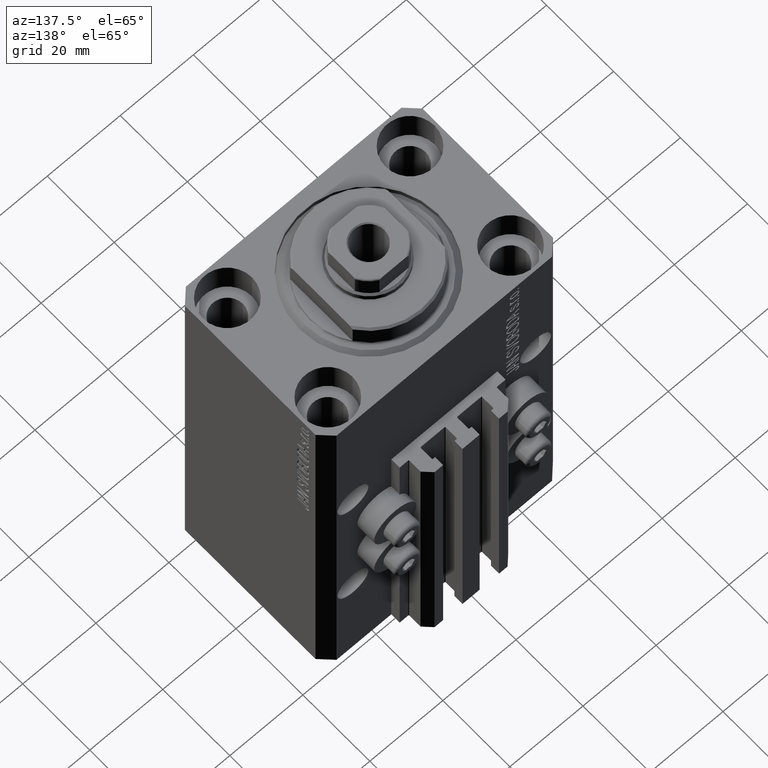
[diagram: clean part render]
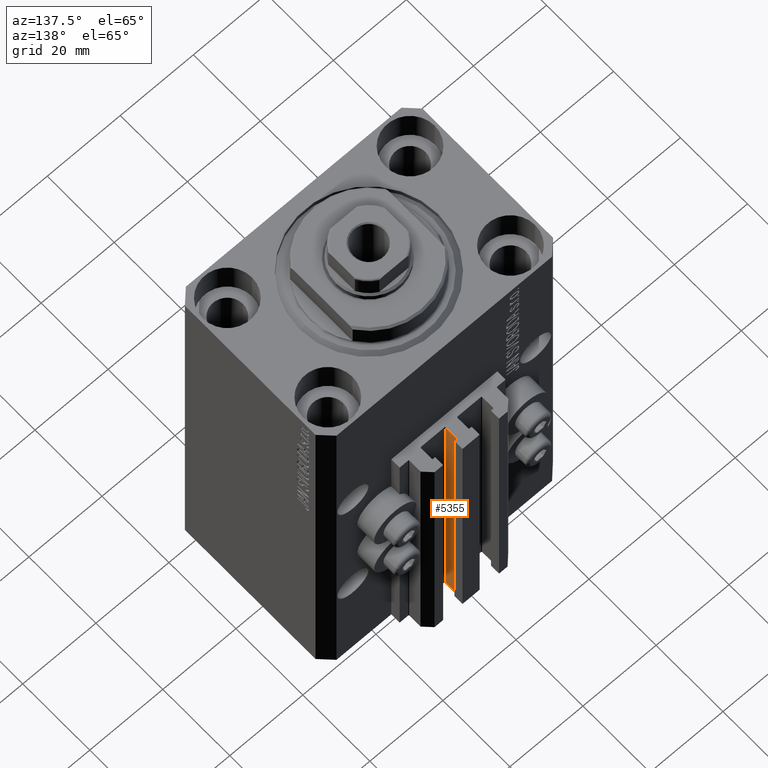
[diagram: same view with one face highlighted and labeled with its STEP entity id]
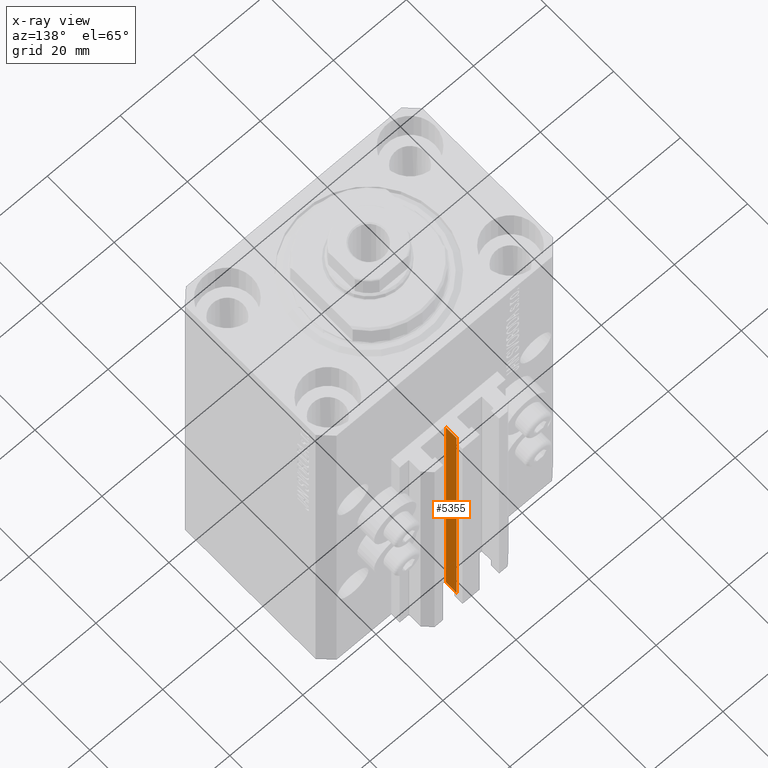
[diagram: x-ray of the same camera — body ghosted, the highlighted face saturated]
A machine part, auxiliary view. The second image highlights one B-rep face of the part: STEP entity #5355.
The next image is the same camera in x-ray: the body ghosted, the highlighted face saturated — about 0% of this face is hidden behind the body in this view.
In plain terms, the highlighted planar face has unit normal (1, 0, 0).
Its self-contained STEP definition (entity closure, byte-faithful):
#2138 = VECTOR ( 'NONE', #40594, 1000.000000000000000 ) ;
#4242 = EDGE_CURVE ( 'NONE', #34326, #12910, #17943, .T. ) ;
#5168 = VECTOR ( 'NONE', #27953, 1000.000000000000000 ) ;
#5355 = ADVANCED_FACE ( 'NONE', ( #26739 ), #38546, .T. ) ;
#7613 = ORIENTED_EDGE ( 'NONE', *, *, #17335, .T. ) ;
#9021 = EDGE_CURVE ( 'NONE', #27188, #43061, #35284, .T. ) ;
#10694 = DIRECTION ( 'NONE',  ( 0.000000000000000000, 0.000000000000000000, 1.000000000000000000 ) ) ;
#11009 = ORIENTED_EDGE ( 'NONE', *, *, #9021, .F. ) ;
#12910 = VERTEX_POINT ( 'NONE', #18052 ) ;
#13752 = DIRECTION ( 'NONE',  ( 0.000000000000000000, 1.000000000000000000, 0.000000000000000000 ) ) ;
#17335 = EDGE_CURVE ( 'NONE', #27188, #34326, #17818, .T. ) ;
#17363 = LINE ( 'NONE', #32053, #22213 ) ;
#17818 = LINE ( 'NONE', #24818, #5168 ) ;
#17943 = LINE ( 'NONE', #36254, #2138 ) ;
#18052 = CARTESIAN_POINT ( 'NONE',  ( 1.600000000000000533, 27.89999999999950120, -33.00000000000000000 ) ) ;
#18072 = CARTESIAN_POINT ( 'NONE',  ( 1.600000000000000533, 27.89999999999950120, -107.0000000000000000 ) ) ;
#19993 = DIRECTION ( 'NONE',  ( 1.000000000000000000, 0.000000000000000000, 0.000000000000000000 ) ) ;
#20462 = CARTESIAN_POINT ( 'NONE',  ( 1.600000000000000533, 24.69999999999949480, -107.0000000000000000 ) ) ;
#20698 = EDGE_CURVE ( 'NONE', #43061, #12910, #17363, .T. ) ;
#21942 = VECTOR ( 'NONE', #10694, 1000.000000000000000 ) ;
#22213 = VECTOR ( 'NONE', #13752, 1000.000000000000000 ) ;
#23029 = AXIS2_PLACEMENT_3D ( 'NONE', #20462, #19993, #38778 ) ;
#24818 = CARTESIAN_POINT ( 'NONE',  ( 1.600000000000000533, 24.69999999999949480, -107.0000000000000000 ) ) ;
#24924 = EDGE_LOOP ( 'NONE', ( #32284, #11009, #7613, #46059 ) ) ;
#26739 = FACE_OUTER_BOUND ( 'NONE', #24924, .T. ) ;
#27188 = VERTEX_POINT ( 'NONE', #43454 ) ;
#27953 = DIRECTION ( 'NONE',  ( 0.000000000000000000, 1.000000000000000000, 0.000000000000000000 ) ) ;
#29854 = CARTESIAN_POINT ( 'NONE',  ( 1.599999999999999645, 24.69999999999949480, -33.00000000000000000 ) ) ;
#32053 = CARTESIAN_POINT ( 'NONE',  ( 1.600000000000000533, 24.69999999999949480, -33.00000000000000000 ) ) ;
#32284 = ORIENTED_EDGE ( 'NONE', *, *, #20698, .F. ) ;
#34326 = VERTEX_POINT ( 'NONE', #18072 ) ;
#35284 = LINE ( 'NONE', #35743, #21942 ) ;
#35743 = CARTESIAN_POINT ( 'NONE',  ( 1.599999999999999645, 24.69999999999949480, -107.0000000000000000 ) ) ;
#36254 = CARTESIAN_POINT ( 'NONE',  ( 1.600000000000000533, 27.89999999999950120, -107.0000000000000000 ) ) ;
#38546 = PLANE ( 'NONE',  #23029 ) ;
#38778 = DIRECTION ( 'NONE',  ( 0.000000000000000000, 0.000000000000000000, -1.000000000000000000 ) ) ;
#40594 = DIRECTION ( 'NONE',  ( 0.000000000000000000, 0.000000000000000000, 1.000000000000000000 ) ) ;
#43061 = VERTEX_POINT ( 'NONE', #29854 ) ;
#43454 = CARTESIAN_POINT ( 'NONE',  ( 1.599999999999999645, 24.69999999999949480, -107.0000000000000000 ) ) ;
#46059 = ORIENTED_EDGE ( 'NONE', *, *, #4242, .T. ) ;